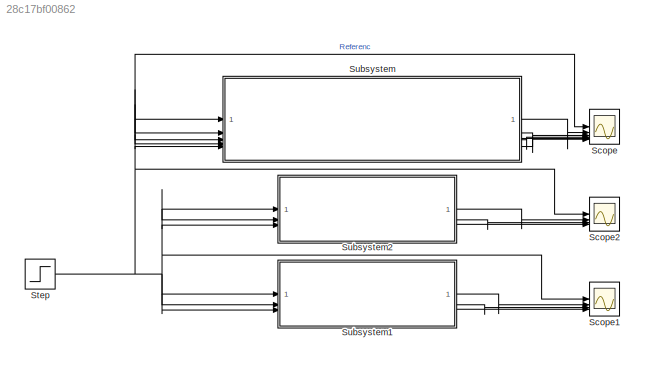
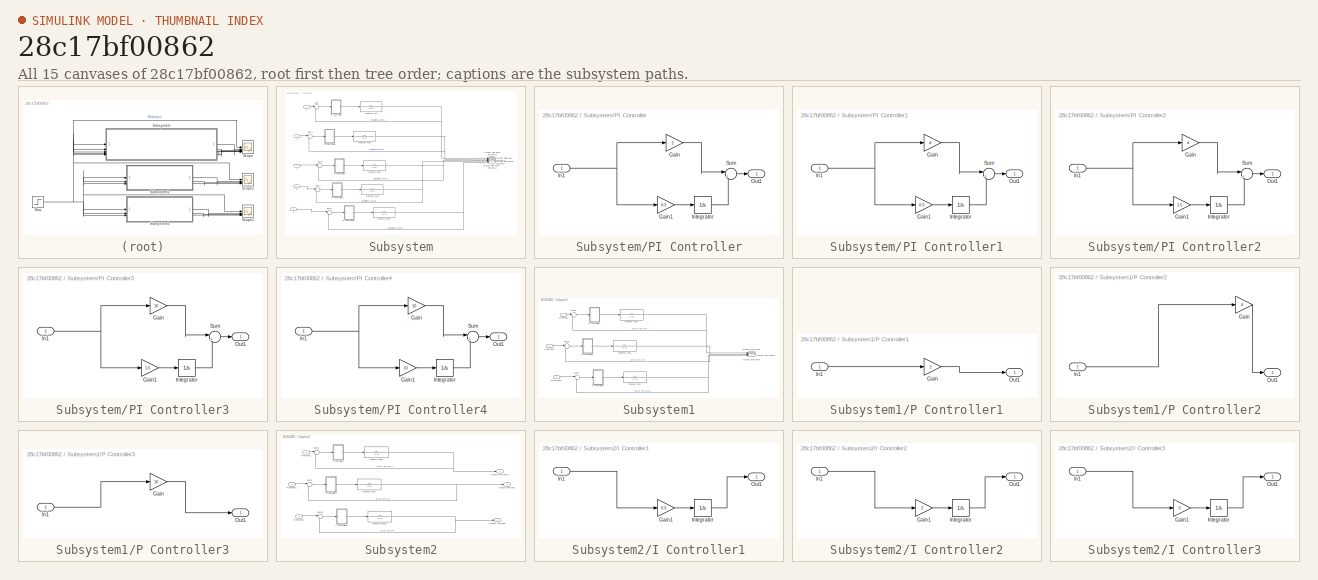
[diagram: thumbnail index - all 15 canvases of the model, root first then tree order]
MODEL slx_28c17bf00862
KIND model
CONFIG AbsTol = auto
CONFIG EnableMultiTasking = off
CONFIG FixedStep = auto
CONFIG MaxStep = auto
CONFIG MinStep = auto
CONFIG RelTol = 1e-3
CONFIG SampleTimeConstraint = Unconstrained
CONFIG SolverName = VariableStepAuto
CONFIG StartTime = 0.0
CONFIG StopTime = 30
BLOCK [Scope] Scope
  Floating = off
  NumInputPorts = 6
  ScopeSpecificationString = Simulink.scopes.TimeScopeBlockCfg('CurrentConfiguration', extmgr.ConfigurationSet(extmgr.Configuration('Core','General UI',true,'FigureColor',[1 1 1]),extmgr.Configuration('Core','Source UI',true),extmgr.Configuration('Sources','WiredSimulink',true),extmgr.Configuration('Visuals','Time Domain',true,'SerializedDisplays',{struct('MinYLimReal','-0.125','MaxYLimReal','1.125','YLabelReal','','MinYLimMa...<+6692ch>
BLOCK [Scope] Scope1
  Floating = off
  NumInputPorts = 4
  ScopeSpecificationString = Simulink.scopes.TimeScopeBlockCfg('CurrentConfiguration', extmgr.ConfigurationSet(extmgr.Configuration('Core','General UI',true,'FigureColor',[1 1 1]),extmgr.Configuration('Core','Source UI',true),extmgr.Configuration('Sources','WiredSimulink',true,'DataLoggingVariableName','ScopeData1'),extmgr.Configuration('Visuals','Time Domain',true,'SerializedDisplays',{struct('MinYLimReal','-0.15338','MaxYLi...<+4118ch>
BLOCK [Scope] Scope2
  Floating = off
  NumInputPorts = 4
  ScopeSpecificationString = Simulink.scopes.TimeScopeBlockCfg('CurrentConfiguration', extmgr.ConfigurationSet(extmgr.Configuration('Core','General UI',true,'FigureColor',[1 1 1]),extmgr.Configuration('Core','Source UI',true),extmgr.Configuration('Sources','WiredSimulink',true,'DataLoggingVariableName','ScopeData2'),extmgr.Configuration('Visuals','Time Domain',true,'SerializedDisplays',{struct('MinYLimReal','-0.125','MaxYLimR...<+4057ch>
BLOCK [Step] Step
  SampleTime = 0
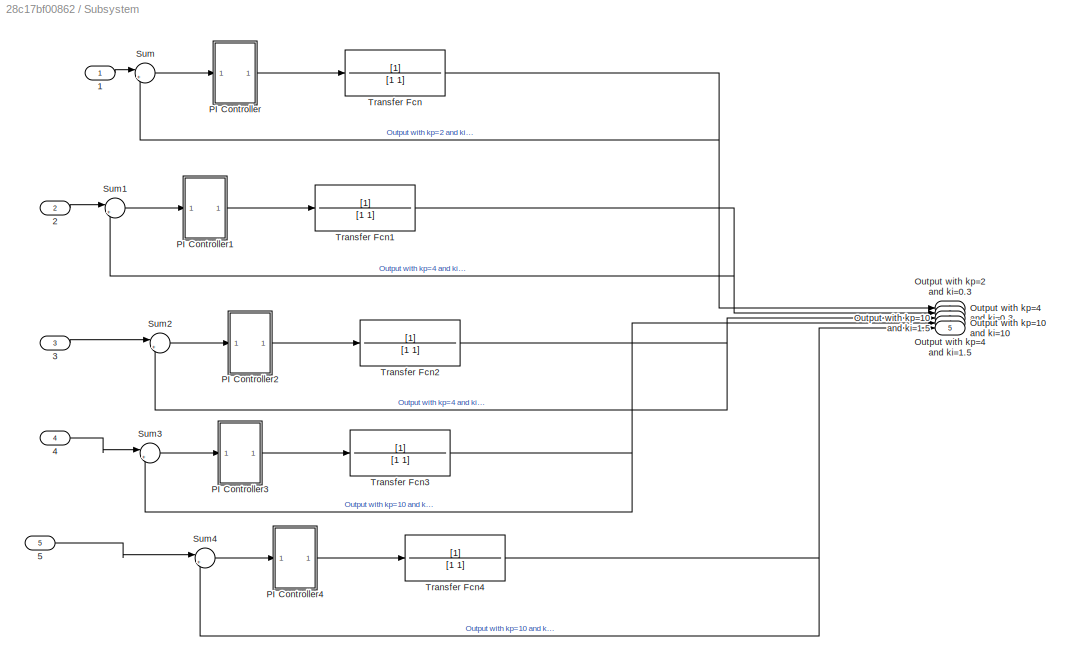
BLOCK [SubSystem] Subsystem
BLOCK [Inport] Subsystem/1
BLOCK [Inport] Subsystem/2
  Port = 2
BLOCK [Inport] Subsystem/3
  Port = 3
BLOCK [Inport] Subsystem/4
  Port = 4
BLOCK [Inport] Subsystem/5
  Port = 5
BLOCK [Outport] Subsystem/Output with kp=10 and ki=1.5
  Port = 4
BLOCK [Outport] Subsystem/Output with kp=10 and ki=10
  Port = 5
BLOCK [Outport] Subsystem/Output with kp=2 and ki=0.3
BLOCK [Outport] Subsystem/Output with kp=4 and ki=0.3
  Port = 2
BLOCK [Outport] Subsystem/Output with kp=4 and ki=1.5
  Port = 3
BLOCK [SubSystem] Subsystem/PI Controller
BLOCK [Gain] Subsystem/PI Controller/Gain
  Gain = 2
BLOCK [Gain] Subsystem/PI Controller/Gain1
  Gain = 0.3
BLOCK [Inport] Subsystem/PI Controller/In1
BLOCK [Integrator] Subsystem/PI Controller/Integrator
BLOCK [Outport] Subsystem/PI Controller/Out1
BLOCK [Sum] Subsystem/PI Controller/Sum
  Inputs = |++
BLOCK [SubSystem] Subsystem/PI Controller1
BLOCK [Gain] Subsystem/PI Controller1/Gain
  Gain = 4
BLOCK [Gain] Subsystem/PI Controller1/Gain1
  Gain = 0.3
BLOCK [Inport] Subsystem/PI Controller1/In1
BLOCK [Integrator] Subsystem/PI Controller1/Integrator
BLOCK [Outport] Subsystem/PI Controller1/Out1
BLOCK [Sum] Subsystem/PI Controller1/Sum
  Inputs = |++
BLOCK [SubSystem] Subsystem/PI Controller2
BLOCK [Gain] Subsystem/PI Controller2/Gain
  Gain = 4
BLOCK [Gain] Subsystem/PI Controller2/Gain1
  Gain = 1.5
BLOCK [Inport] Subsystem/PI Controller2/In1
BLOCK [Integrator] Subsystem/PI Controller2/Integrator
BLOCK [Outport] Subsystem/PI Controller2/Out1
BLOCK [Sum] Subsystem/PI Controller2/Sum
  Inputs = |++
BLOCK [SubSystem] Subsystem/PI Controller3
BLOCK [Gain] Subsystem/PI Controller3/Gain
  Gain = 10
BLOCK [Gain] Subsystem/PI Controller3/Gain1
  Gain = 1.5
BLOCK [Inport] Subsystem/PI Controller3/In1
BLOCK [Integrator] Subsystem/PI Controller3/Integrator
BLOCK [Outport] Subsystem/PI Controller3/Out1
BLOCK [Sum] Subsystem/PI Controller3/Sum
  Inputs = |++
BLOCK [SubSystem] Subsystem/PI Controller4
BLOCK [Gain] Subsystem/PI Controller4/Gain
  Gain = 10
BLOCK [Gain] Subsystem/PI Controller4/Gain1
  Gain = 10
BLOCK [Inport] Subsystem/PI Controller4/In1
BLOCK [Integrator] Subsystem/PI Controller4/Integrator
BLOCK [Outport] Subsystem/PI Controller4/Out1
BLOCK [Sum] Subsystem/PI Controller4/Sum
  Inputs = |++
BLOCK [Sum] Subsystem/Sum
  Inputs = |+-
BLOCK [Sum] Subsystem/Sum1
  Inputs = |+-
BLOCK [Sum] Subsystem/Sum2
  Inputs = |+-
BLOCK [Sum] Subsystem/Sum3
  Inputs = |+-
BLOCK [Sum] Subsystem/Sum4
  Inputs = |+-
BLOCK [TransferFcn] Subsystem/Transfer Fcn
BLOCK [TransferFcn] Subsystem/Transfer Fcn1
BLOCK [TransferFcn] Subsystem/Transfer Fcn2
BLOCK [TransferFcn] Subsystem/Transfer Fcn3
BLOCK [TransferFcn] Subsystem/Transfer Fcn4
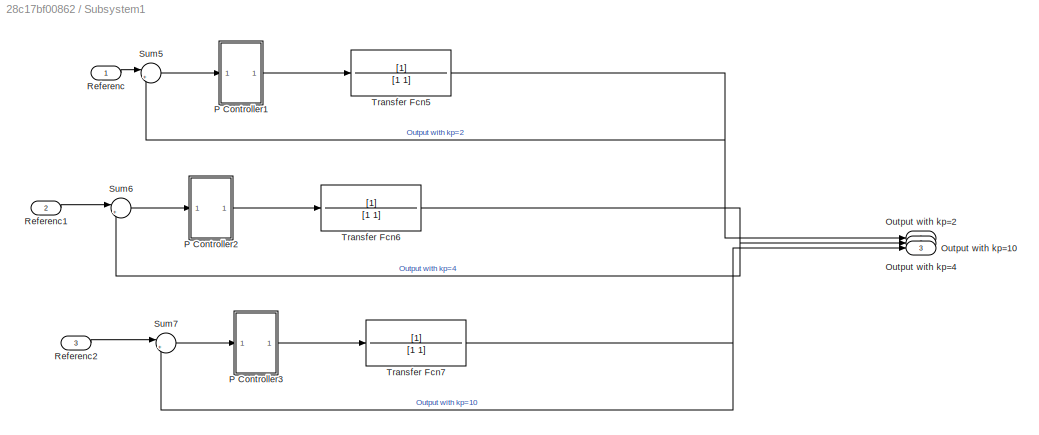
BLOCK [SubSystem] Subsystem1
BLOCK [Outport] Subsystem1/Output with kp=10
  Port = 3
BLOCK [Outport] Subsystem1/Output with kp=2
BLOCK [Outport] Subsystem1/Output with kp=4
  Port = 2
BLOCK [SubSystem] Subsystem1/P Controller1
BLOCK [Gain] Subsystem1/P Controller1/Gain
  Gain = 2
BLOCK [Inport] Subsystem1/P Controller1/In1
BLOCK [Outport] Subsystem1/P Controller1/Out1
BLOCK [SubSystem] Subsystem1/P Controller2
BLOCK [Gain] Subsystem1/P Controller2/Gain
  Gain = 4
BLOCK [Inport] Subsystem1/P Controller2/In1
BLOCK [Outport] Subsystem1/P Controller2/Out1
BLOCK [SubSystem] Subsystem1/P Controller3
BLOCK [Gain] Subsystem1/P Controller3/Gain
  Gain = 10
BLOCK [Inport] Subsystem1/P Controller3/In1
BLOCK [Outport] Subsystem1/P Controller3/Out1
BLOCK [Inport] Subsystem1/Referenc
BLOCK [Inport] Subsystem1/Referenc1
  Port = 2
BLOCK [Inport] Subsystem1/Referenc2
  Port = 3
BLOCK [Sum] Subsystem1/Sum5
  Inputs = |+-
BLOCK [Sum] Subsystem1/Sum6
  Inputs = |+-
BLOCK [Sum] Subsystem1/Sum7
  Inputs = |+-
BLOCK [TransferFcn] Subsystem1/Transfer Fcn5
BLOCK [TransferFcn] Subsystem1/Transfer Fcn6
BLOCK [TransferFcn] Subsystem1/Transfer Fcn7
BLOCK [SubSystem] Subsystem2
BLOCK [SubSystem] Subsystem2/I Controller1
BLOCK [Gain] Subsystem2/I Controller1/Gain1
  Gain = 0.3
BLOCK [Inport] Subsystem2/I Controller1/In1
BLOCK [Integrator] Subsystem2/I Controller1/Integrator
BLOCK [Outport] Subsystem2/I Controller1/Out1
BLOCK [SubSystem] Subsystem2/I Controller2
BLOCK [Gain] Subsystem2/I Controller2/Gain1
  Gain = 2
BLOCK [Inport] Subsystem2/I Controller2/In1
BLOCK [Integrator] Subsystem2/I Controller2/Integrator
BLOCK [Outport] Subsystem2/I Controller2/Out1
BLOCK [SubSystem] Subsystem2/I Controller3
BLOCK [Gain] Subsystem2/I Controller3/Gain1
  Gain = 5
BLOCK [Inport] Subsystem2/I Controller3/In1
BLOCK [Integrator] Subsystem2/I Controller3/Integrator
BLOCK [Outport] Subsystem2/I Controller3/Out1
BLOCK [Outport] Subsystem2/Output with  ki=0.3
BLOCK [Outport] Subsystem2/Output with  ki=2
  Port = 2
BLOCK [Outport] Subsystem2/Output with  ki=5
  Port = 3
BLOCK [Inport] Subsystem2/Referenc
BLOCK [Inport] Subsystem2/Referenc1
  Port = 2
BLOCK [Inport] Subsystem2/Referenc2
  Port = 3
BLOCK [Sum] Subsystem2/Sum10
  Inputs = |+-
BLOCK [Sum] Subsystem2/Sum8
  Inputs = |+-
BLOCK [Sum] Subsystem2/Sum9
  Inputs = |+-
BLOCK [TransferFcn] Subsystem2/Transfer Fcn10
BLOCK [TransferFcn] Subsystem2/Transfer Fcn8
BLOCK [TransferFcn] Subsystem2/Transfer Fcn9
NET Step:1 -> Scope1:1, Scope2:1, Scope:1, Subsystem1:1, Subsystem1:2, Subsystem1:3, Subsystem2:1, Subsystem2:2, Subsystem2:3, Subsystem:1, Subsystem:2, Subsystem:3, Subsystem:4, Subsystem:5
LINE Subsystem/1:1 -> Subsystem/Sum:1
LINE Subsystem/2:1 -> Subsystem/Sum1:1
LINE Subsystem/3:1 -> Subsystem/Sum2:1
LINE Subsystem/4:1 -> Subsystem/Sum3:1
LINE Subsystem/5:1 -> Subsystem/Sum4:1
LINE Subsystem/PI Controller/Gain1:1 -> Subsystem/PI Controller/Integrator:1
LINE Subsystem/PI Controller/Gain:1 -> Subsystem/PI Controller/Sum:1
NET Subsystem/PI Controller/In1:1 -> Subsystem/PI Controller/Gain1:1, Subsystem/PI Controller/Gain:1
LINE Subsystem/PI Controller/Integrator:1 -> Subsystem/PI Controller/Sum:2
LINE Subsystem/PI Controller/Sum:1 -> Subsystem/PI Controller/Out1:1
LINE Subsystem/PI Controller1/Gain1:1 -> Subsystem/PI Controller1/Integrator:1
LINE Subsystem/PI Controller1/Gain:1 -> Subsystem/PI Controller1/Sum:1
NET Subsystem/PI Controller1/In1:1 -> Subsystem/PI Controller1/Gain1:1, Subsystem/PI Controller1/Gain:1
LINE Subsystem/PI Controller1/Integrator:1 -> Subsystem/PI Controller1/Sum:2
LINE Subsystem/PI Controller1/Sum:1 -> Subsystem/PI Controller1/Out1:1
LINE Subsystem/PI Controller1:1 -> Subsystem/Transfer Fcn1:1
LINE Subsystem/PI Controller2/Gain1:1 -> Subsystem/PI Controller2/Integrator:1
LINE Subsystem/PI Controller2/Gain:1 -> Subsystem/PI Controller2/Sum:1
NET Subsystem/PI Controller2/In1:1 -> Subsystem/PI Controller2/Gain1:1, Subsystem/PI Controller2/Gain:1
LINE Subsystem/PI Controller2/Integrator:1 -> Subsystem/PI Controller2/Sum:2
LINE Subsystem/PI Controller2/Sum:1 -> Subsystem/PI Controller2/Out1:1
LINE Subsystem/PI Controller2:1 -> Subsystem/Transfer Fcn2:1
LINE Subsystem/PI Controller3/Gain1:1 -> Subsystem/PI Controller3/Integrator:1
LINE Subsystem/PI Controller3/Gain:1 -> Subsystem/PI Controller3/Sum:1
NET Subsystem/PI Controller3/In1:1 -> Subsystem/PI Controller3/Gain1:1, Subsystem/PI Controller3/Gain:1
LINE Subsystem/PI Controller3/Integrator:1 -> Subsystem/PI Controller3/Sum:2
LINE Subsystem/PI Controller3/Sum:1 -> Subsystem/PI Controller3/Out1:1
LINE Subsystem/PI Controller3:1 -> Subsystem/Transfer Fcn3:1
LINE Subsystem/PI Controller4/Gain1:1 -> Subsystem/PI Controller4/Integrator:1
LINE Subsystem/PI Controller4/Gain:1 -> Subsystem/PI Controller4/Sum:1
NET Subsystem/PI Controller4/In1:1 -> Subsystem/PI Controller4/Gain1:1, Subsystem/PI Controller4/Gain:1
LINE Subsystem/PI Controller4/Integrator:1 -> Subsystem/PI Controller4/Sum:2
LINE Subsystem/PI Controller4/Sum:1 -> Subsystem/PI Controller4/Out1:1
LINE Subsystem/PI Controller4:1 -> Subsystem/Transfer Fcn4:1
LINE Subsystem/PI Controller:1 -> Subsystem/Transfer Fcn:1
LINE Subsystem/Sum1:1 -> Subsystem/PI Controller1:1
LINE Subsystem/Sum2:1 -> Subsystem/PI Controller2:1
LINE Subsystem/Sum3:1 -> Subsystem/PI Controller3:1
LINE Subsystem/Sum4:1 -> Subsystem/PI Controller4:1
LINE Subsystem/Sum:1 -> Subsystem/PI Controller:1
NET Subsystem/Transfer Fcn1:1 -> Subsystem/Output with kp=4 and ki=0.3:1, Subsystem/Sum1:2
NET Subsystem/Transfer Fcn2:1 -> Subsystem/Output with kp=4 and ki=1.5:1, Subsystem/Sum2:2
NET Subsystem/Transfer Fcn3:1 -> Subsystem/Output with kp=10 and ki=1.5:1, Subsystem/Sum3:2
NET Subsystem/Transfer Fcn4:1 -> Subsystem/Output with kp=10 and ki=10:1, Subsystem/Sum4:2
NET Subsystem/Transfer Fcn:1 -> Subsystem/Output with kp=2 and ki=0.3:1, Subsystem/Sum:2
LINE Subsystem1/P Controller1/Gain:1 -> Subsystem1/P Controller1/Out1:1
LINE Subsystem1/P Controller1/In1:1 -> Subsystem1/P Controller1/Gain:1
LINE Subsystem1/P Controller1:1 -> Subsystem1/Transfer Fcn5:1
LINE Subsystem1/P Controller2/Gain:1 -> Subsystem1/P Controller2/Out1:1
LINE Subsystem1/P Controller2/In1:1 -> Subsystem1/P Controller2/Gain:1
LINE Subsystem1/P Controller2:1 -> Subsystem1/Transfer Fcn6:1
LINE Subsystem1/P Controller3/Gain:1 -> Subsystem1/P Controller3/Out1:1
LINE Subsystem1/P Controller3/In1:1 -> Subsystem1/P Controller3/Gain:1
LINE Subsystem1/P Controller3:1 -> Subsystem1/Transfer Fcn7:1
LINE Subsystem1/Referenc1:1 -> Subsystem1/Sum6:1
LINE Subsystem1/Referenc2:1 -> Subsystem1/Sum7:1
LINE Subsystem1/Referenc:1 -> Subsystem1/Sum5:1
LINE Subsystem1/Sum5:1 -> Subsystem1/P Controller1:1
LINE Subsystem1/Sum6:1 -> Subsystem1/P Controller2:1
LINE Subsystem1/Sum7:1 -> Subsystem1/P Controller3:1
NET Subsystem1/Transfer Fcn5:1 -> Subsystem1/Output with kp=2:1, Subsystem1/Sum5:2
NET Subsystem1/Transfer Fcn6:1 -> Subsystem1/Output with kp=4:1, Subsystem1/Sum6:2
NET Subsystem1/Transfer Fcn7:1 -> Subsystem1/Output with kp=10:1, Subsystem1/Sum7:2
LINE Subsystem1:1 -> Scope1:2
LINE Subsystem1:2 -> Scope1:3
LINE Subsystem1:3 -> Scope1:4
LINE Subsystem2/I Controller1/Gain1:1 -> Subsystem2/I Controller1/Integrator:1
LINE Subsystem2/I Controller1/In1:1 -> Subsystem2/I Controller1/Gain1:1
LINE Subsystem2/I Controller1/Integrator:1 -> Subsystem2/I Controller1/Out1:1
LINE Subsystem2/I Controller1:1 -> Subsystem2/Transfer Fcn8:1
LINE Subsystem2/I Controller2/Gain1:1 -> Subsystem2/I Controller2/Integrator:1
LINE Subsystem2/I Controller2/In1:1 -> Subsystem2/I Controller2/Gain1:1
LINE Subsystem2/I Controller2/Integrator:1 -> Subsystem2/I Controller2/Out1:1
LINE Subsystem2/I Controller2:1 -> Subsystem2/Transfer Fcn9:1
LINE Subsystem2/I Controller3/Gain1:1 -> Subsystem2/I Controller3/Integrator:1
LINE Subsystem2/I Controller3/In1:1 -> Subsystem2/I Controller3/Gain1:1
LINE Subsystem2/I Controller3/Integrator:1 -> Subsystem2/I Controller3/Out1:1
LINE Subsystem2/I Controller3:1 -> Subsystem2/Transfer Fcn10:1
LINE Subsystem2/Referenc1:1 -> Subsystem2/Sum9:1
LINE Subsystem2/Referenc2:1 -> Subsystem2/Sum10:1
LINE Subsystem2/Referenc:1 -> Subsystem2/Sum8:1
LINE Subsystem2/Sum10:1 -> Subsystem2/I Controller3:1
LINE Subsystem2/Sum8:1 -> Subsystem2/I Controller1:1
LINE Subsystem2/Sum9:1 -> Subsystem2/I Controller2:1
NET Subsystem2/Transfer Fcn10:1 -> Subsystem2/Output with  ki=5:1, Subsystem2/Sum10:2
NET Subsystem2/Transfer Fcn8:1 -> Subsystem2/Output with  ki=0.3:1, Subsystem2/Sum8:2
NET Subsystem2/Transfer Fcn9:1 -> Subsystem2/Output with  ki=2:1, Subsystem2/Sum9:2
LINE Subsystem2:1 -> Scope2:2
LINE Subsystem2:2 -> Scope2:3
LINE Subsystem2:3 -> Scope2:4
LINE Subsystem:1 -> Scope:2
LINE Subsystem:2 -> Scope:3
LINE Subsystem:3 -> Scope:4
LINE Subsystem:4 -> Scope:5
LINE Subsystem:5 -> Scope:6
note: NET lines group one-source signal fan-out (src -> all destinations, sorted); 1:1 wires keep LINE
